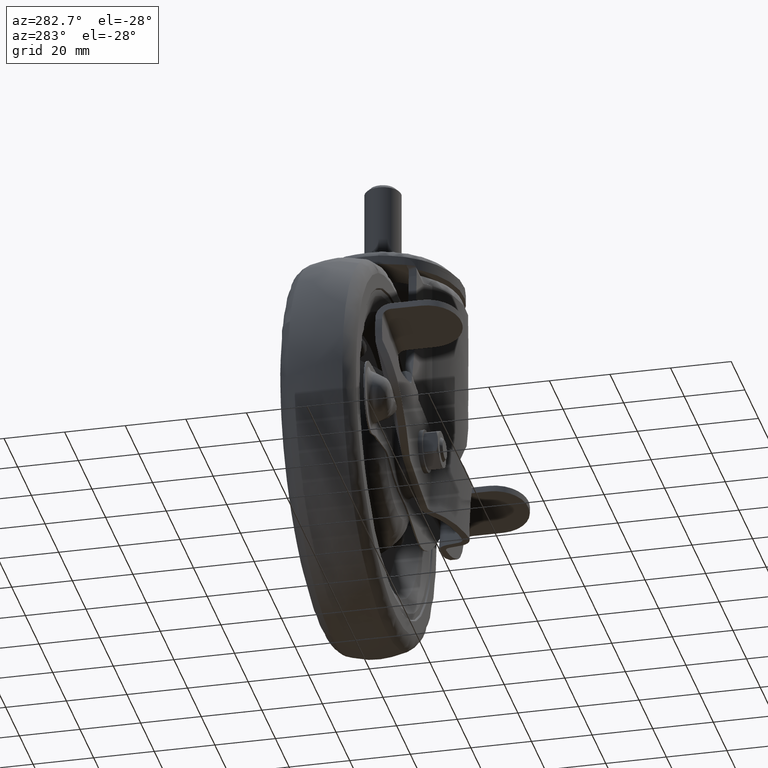
[diagram: clean part render]
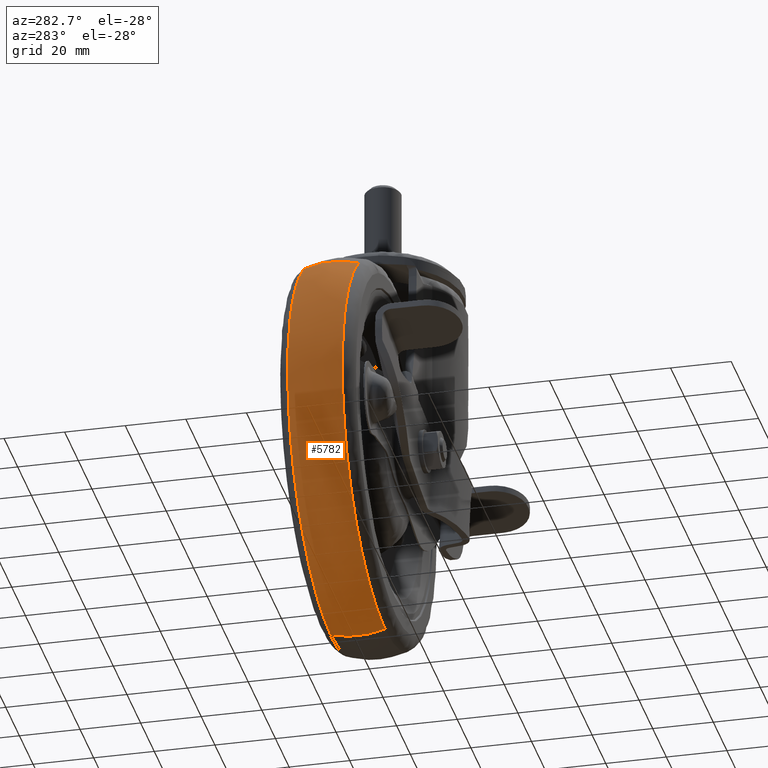
[diagram: same view with one face highlighted and labeled with its STEP entity id]
A machine part, auxiliary view. The second image highlights one B-rep face of the part: STEP entity #5782.
In plain terms, the highlighted face is a freeform B-spline surface patch.
Its self-contained STEP definition (entity closure, byte-faithful):
#5529=CARTESIAN_POINT('',(-96.504480879918560,9.000000000363295,-66.341090451724710));
#5530=VERTEX_POINT('',#5529);
#5544=CARTESIAN_POINT('',(-75.680395793601491,8.999999999989424,-36.273550142216607));
#5545=VERTEX_POINT('',#5544);
#5546=CARTESIAN_POINT('',(-75.680395793601491,8.999999999989424,-36.273550142216607));
#5547=CARTESIAN_POINT('',(-90.604381707284958,9.0,-48.182452360117644));
#5548=CARTESIAN_POINT('',(-96.504480879918560,9.000000000363295,-66.341090451724725));
#5556=(BOUNDED_CURVE()B_SPLINE_CURVE(2,(#5546,#5547,#5548),.UNSPECIFIED.,.F.,.U.)B_SPLINE_CURVE_WITH_KNOTS((3,3),(0.608098577602661,0.697450174525912),.UNSPECIFIED.)CURVE()GEOMETRIC_REPRESENTATION_ITEM()RATIONAL_B_SPLINE_CURVE((0.856230744649401,0.842076559586161,0.902750339224095))REPRESENTATION_ITEM(''));
#5557=EDGE_CURVE('',#5545,#5530,#5556,.T.);
#5661=CARTESIAN_POINT('',(-36.799418031486482,9.000019924537934,-149.613334884306990));
#5662=VERTEX_POINT('',#5661);
#5676=CARTESIAN_POINT('',(-96.504480879918560,9.000000000363295,-66.341090451724710));
#5677=CARTESIAN_POINT('',(-99.618176037827240,9.000001161947377,-75.924058427787486));
#5678=CARTESIAN_POINT('',(-99.618176031542333,9.000002754258746,-86.000187134053846));
#5679=CARTESIAN_POINT('',(-99.618175992356498,9.000012682170404,-148.823902111578750));
#5680=CARTESIAN_POINT('',(-36.799418031486475,9.000019924537934,-149.613334884306990));
#5688=(BOUNDED_CURVE()B_SPLINE_CURVE(2,(#5676,#5677,#5678,#5679,#5680),.UNSPECIFIED.,.F.,.U.)B_SPLINE_CURVE_WITH_KNOTS((3,2,3),(0.697450174525912,0.750000000000000,0.997784324749205),.UNSPECIFIED.)CURVE()GEOMETRIC_REPRESENTATION_ITEM()RATIONAL_B_SPLINE_CURVE((0.902750339224096,0.938434049875237,1.0,0.709702606210751,0.994854361993686))REPRESENTATION_ITEM(''));
#5689=EDGE_CURVE('',#5530,#5662,#5688,.T.);
#5710=CARTESIAN_POINT('',(-75.504603823317751,9.851524995517034,-36.493858547257965));
#5711=CARTESIAN_POINT('',(-98.954337863881619,9.851524995517034,-55.206060871183894));
#5712=CARTESIAN_POINT('',(-99.331326713522245,9.851524995517034,-85.204301182774898));
#5713=CARTESIAN_POINT('',(-100.127213530747340,9.851524995517035,-148.535627896297110));
#5714=CARTESIAN_POINT('',(-36.795886817225046,9.851524995517034,-149.331514713522240));
#5715=CARTESIAN_POINT('',(-77.640885051818827,-0.000005147586262,-33.816716339355175));
#5716=CARTESIAN_POINT('',(-102.358704879756930,-0.000005147586263,-53.540814055203036));
#5717=CARTESIAN_POINT('',(-102.756080067315050,-0.000005147586262,-85.161262197363129));
#5718=CARTESIAN_POINT('',(-103.595005869951930,-0.000005147586262,-151.917342264678180));
#5719=CARTESIAN_POINT('',(-36.838925802636815,-0.000005147586262,-152.756268067315030));
#5720=CARTESIAN_POINT('',(-75.504601831575400,-9.851534180496635,-36.493861043267124));
#5721=CARTESIAN_POINT('',(-98.954334689851038,-9.851534180496641,-55.206062423761615));
#5722=CARTESIAN_POINT('',(-99.331323520484602,-9.851534180496639,-85.204301222901890));
#5723=CARTESIAN_POINT('',(-100.127210297582710,-9.851534180496641,-148.535624743386510));
#5724=CARTESIAN_POINT('',(-36.795886777098040,-9.851534180496639,-149.331511520484670));
#5732=(BOUNDED_SURFACE()B_SPLINE_SURFACE(2,2,((#5710,#5715,#5720),(#5711,#5716,#5721),(#5712,#5717,#5722),(#5713,#5718,#5723),(#5714,#5719,#5724)),.UNSPECIFIED.,.F.,.F.,.U.)B_SPLINE_SURFACE_WITH_KNOTS((3,2,3),(3,3),(0.0,60.309488519134803,168.005014736138800),(0.0,20.264964112582849),.UNSPECIFIED.)GEOMETRIC_REPRESENTATION_ITEM()RATIONAL_B_SPLINE_SURFACE(((0.802569953269866,0.758062812181337,0.802569997201987),(0.784108806630835,0.740625442790347,0.784108849552405),(0.937951842005578,0.885936992961819,0.937951893348408),(0.663232107908557,0.626452055427321,0.663232144213421),(0.937951842005578,0.885936992961819,0.937951893348408)))REPRESENTATION_ITEM('')SURFACE());
#5733=CARTESIAN_POINT('',(-75.680395793609506,-8.999999999958416,-36.273550142210539));
#5734=VERTEX_POINT('',#5733);
#5735=CARTESIAN_POINT('',(-36.799418329474904,-9.000026311397241,-149.613332871817990));
#5736=VERTEX_POINT('',#5735);
#5737=CARTESIAN_POINT('',(-75.680395793609506,-8.999999999958416,-36.273550142210539));
#5738=CARTESIAN_POINT('',(-99.618176033575196,-9.000002261817190,-55.375194658066974));
#5739=CARTESIAN_POINT('',(-99.618176008436762,-9.000008622737870,-86.000185288462561));
#5740=CARTESIAN_POINT('',(-99.618175956868086,-9.000021671449114,-148.823898965477440));
#5741=CARTESIAN_POINT('',(-36.799418329474911,-9.000026311397241,-149.613332871817930));
#5749=(BOUNDED_CURVE()B_SPLINE_CURVE(2,(#5737,#5738,#5739,#5740,#5741),.UNSPECIFIED.,.F.,.U.)B_SPLINE_CURVE_WITH_KNOTS((3,2,3),(0.608098577602673,0.750000000000000,0.997784323855597),.UNSPECIFIED.)CURVE()GEOMETRIC_REPRESENTATION_ITEM()RATIONAL_B_SPLINE_CURVE((0.856230744649397,0.833752142559358,1.0,0.709702607257677,0.994854359936948))REPRESENTATION_ITEM(''));
#5750=EDGE_CURVE('',#5734,#5736,#5749,.T.);
#5751=ORIENTED_EDGE('',*,*,#5750,.F.);
#5752=CARTESIAN_POINT('',(-75.680395793601505,8.999999999989424,-36.273550142216607));
#5753=CARTESIAN_POINT('',(-77.445774361403835,3.406374E-011,-34.061214832365856));
#5754=CARTESIAN_POINT('',(-75.680395793609506,-8.999999999958416,-36.273550142210546));
#5762=(BOUNDED_CURVE()B_SPLINE_CURVE(2,(#5752,#5753,#5754),.UNSPECIFIED.,.F.,.U.)B_SPLINE_CURVE_WITH_KNOTS((3,3),(-1.494101281925805,-0.505898718077761),.UNSPECIFIED.)CURVE()GEOMETRIC_REPRESENTATION_ITEM()RATIONAL_B_SPLINE_CURVE((0.798711031347099,0.761921763406467,0.798711031346834))REPRESENTATION_ITEM(''));
#5763=EDGE_CURVE('',#5545,#5734,#5762,.T.);
#5764=ORIENTED_EDGE('',*,*,#5763,.F.);
#5765=ORIENTED_EDGE('',*,*,#5557,.T.);
#5766=ORIENTED_EDGE('',*,*,#5689,.T.);
#5767=CARTESIAN_POINT('',(-36.799418031486475,9.000019924537934,-149.613334884307050));
#5768=CARTESIAN_POINT('',(-36.834984902715213,-0.000003509265218,-152.443494721556190));
#5769=CARTESIAN_POINT('',(-36.799418329474904,-9.000026311397241,-149.613332871817990));
#5777=(BOUNDED_CURVE()B_SPLINE_CURVE(2,(#5767,#5768,#5769),.UNSPECIFIED.,.F.,.U.)B_SPLINE_CURVE_WITH_KNOTS((3,3),(-1.494102428604183,-0.505897203825527),.UNSPECIFIED.)CURVE()GEOMETRIC_REPRESENTATION_ITEM()RATIONAL_B_SPLINE_CURVE((0.933442071422004,0.890446773224374,0.933442103406858))REPRESENTATION_ITEM(''));
#5778=EDGE_CURVE('',#5662,#5736,#5777,.T.);
#5779=ORIENTED_EDGE('',*,*,#5778,.T.);
#5780=EDGE_LOOP('',(#5751,#5764,#5765,#5766,#5779));
#5781=FACE_OUTER_BOUND('',#5780,.T.);
#5782=ADVANCED_FACE('',(#5781),#5732,.T.);